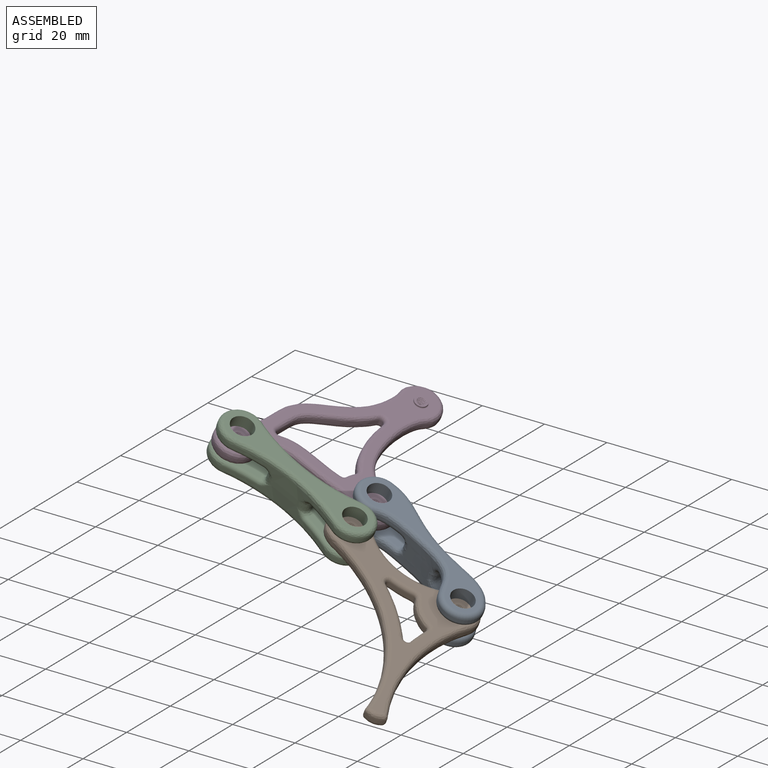
[diagram: assembled view]
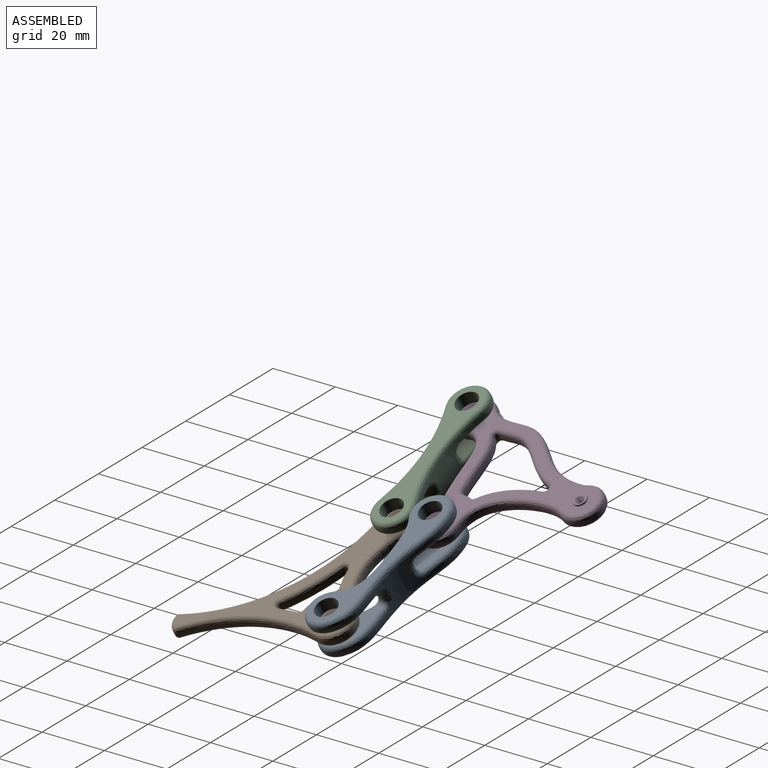
[diagram: assembled view, second angle]
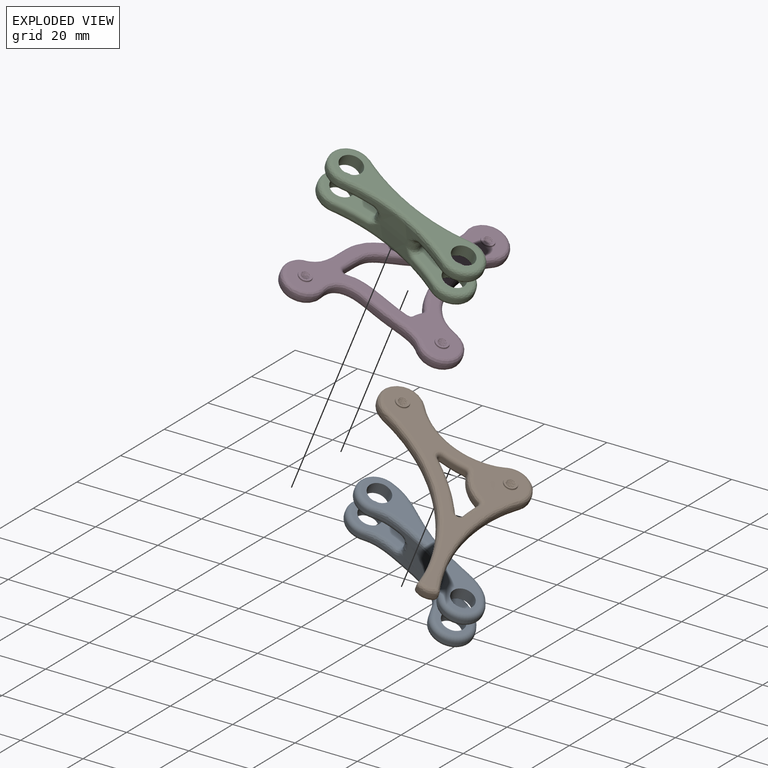
[diagram: exploded view]
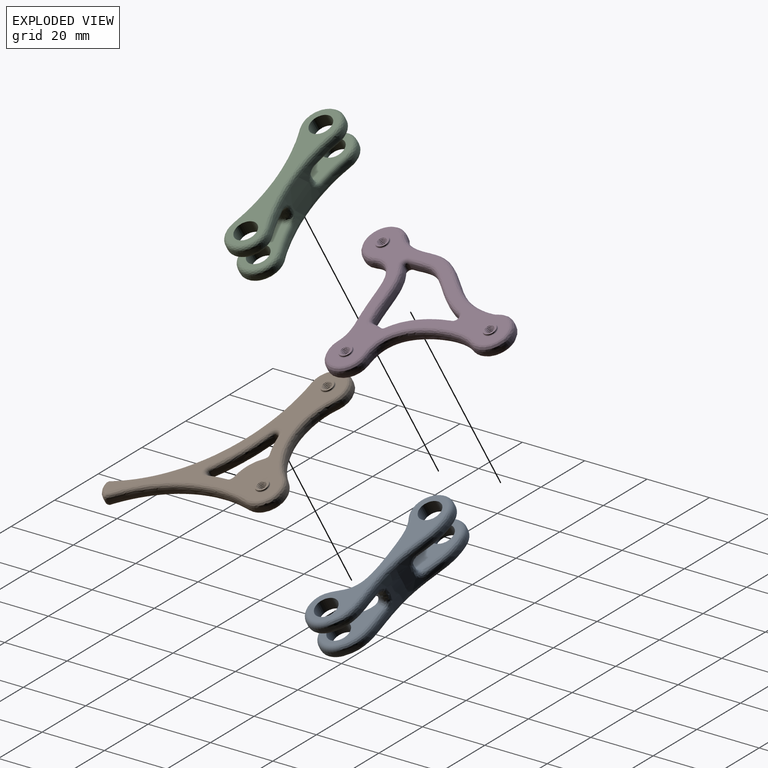
[diagram: exploded view, second angle]
ASSEMBLY  parts=4 mates=4
PART A: 78 faces, bbox 33.5x48.2x13 mm
  f0: bspline ~39.39x24.31mm, area 109.2mm2, adj f1,f3,f5,f6
  f1: torus R=5mm, axis (0,0,1), area 50.4mm2, adj f0,f2,f4,f6
  f2: bspline ~28.23x17.7mm, area 83.1mm2, adj f1,f3,f6,f36
  f3: torus R=5mm, axis (0,0,1), area 43.1mm2, adj f0,f2,f6,f35
  f4: cylinder r=6.5mm len=13mm, axis (0,0,1), area 23.4mm2, adj f1,f5,f16,f36
  f5: extruded ~39.1x23.85mm, area 65.9mm2, adj f0,f4,f9,f11,f12,f17,f19,f21
  f6: plane 44.16x29.44mm, normal (0,0,1), area 202.9mm2, adj f0,f1,f2,f3,f33,f34
  f7: bspline ~10.74x5.14mm, area 25.5mm2, adj f8,f10,f14,f36
  f8: torus R=5mm, axis (0,0,1), area 43.1mm2, adj f7,f9,f14,f35
  f9: bspline ~14.06x10.06mm, area 39.9mm2, adj f5,f8,f11,f14
  f10: bspline ~3.12x2.52mm, area 5mm2, adj f7,f22,f24,f36
  f11: bspline ~2.57x2.4mm, area 5.1mm2, adj f5,f9,f12,f13
  f12: bspline ~2.74x1.5mm, area 1.4mm2, adj f5,f11,f13,f31
  f13: bspline ~2.5x1.85mm, area 2.9mm2, adj f11,f12,f14,f23,f31
  f14: plane 15.16x13.83mm, normal (0,0,-1), area 82.9mm2, adj f7,f8,f9,f13,f22,f23,f33
  f15: bspline ~9.5x2.5mm, area 21.5mm2, adj f16,f18,f30,f36
  f16: torus R=5mm, axis (0,0,1), area 50.4mm2, adj f4,f15,f17,f30
  f17: bspline ~12.55x8.2mm, area 33.1mm2, adj f5,f16,f19,f30
  f18: bspline ~2.64x2.37mm, area 5mm2, adj f15,f26,f28,f36
  f19: bspline ~3.13x2.42mm, area 5.1mm2, adj f5,f17,f20,f21
  f20: bspline ~2.39x2.33mm, area 2.6mm2, adj f19,f21,f27,f29,f30
  f21: bspline ~2.37x1.72mm, area 1.4mm2, adj f5,f19,f20,f29
  f22: bspline ~2.27x2.19mm, area 2mm2, adj f10,f14,f23,f24,f25
  f23: cylinder r=1.5mm len=1.5mm, axis (0.87,-0.49,0), area 0.9mm2, adj f13,f14,f22,f70
  f24: bspline ~2.4x1.5mm, area 1.3mm2, adj f10,f22,f25,f36
  f25: extruded ~2.63x2.5mm, area 4.5mm2, adj f22,f24,f70,f71,f72
  f26: bspline ~2.81x1.91mm, area 3.5mm2, adj f18,f27,f28,f30,f32
  f27: cylinder r=1.5mm len=2.17mm, axis (-0.87,0.49,0), area 3.9mm2, adj f20,f26,f30,f68
  f28: bspline ~2.84x1.5mm, area 1.5mm2, adj f18,f26,f32,f36
  f29: extruded ~2.86x2.5mm, area 4.8mm2, adj f20,f21,f68,f73,f74
  f30: plane 17.59x10.22mm, normal (0,0,-1), area 87.5mm2, adj f15,f16,f17,f20,f26,f27,f34
  f31: extruded ~2.83x2.5mm, area 4.9mm2, adj f12,f13,f63,f70,f74
  f32: extruded ~2.9x2.5mm, area 5.2mm2, adj f26,f28,f68,f69,f72
  f33: cylinder r=3.5mm len=7mm, axis (0,0,1), area 88mm2, adj f6,f14
  f34: cylinder r=3.5mm len=7mm, axis (0,0,1), area 88mm2, adj f6,f30
  f35: cylinder r=6.5mm len=12.54mm, axis (0,0,1), area 20mm2, adj f3,f5,f8,f36
  f36: extruded ~26.45x16mm, area 52mm2, adj f2,f4,f7,f10,f15,f18,f24,f28
  f37: bspline ~39.39x24.31mm, area 109.2mm2, adj f38,f40,f42,f43
  f38: torus R=5mm, axis (0,0,1), area 50.4mm2, adj f37,f39,f43,f77
  f39: bspline ~28.23x17.53mm, area 83.2mm2, adj f38,f40,f43,f49
  f40: torus R=5mm, axis (0,0,1), area 43.1mm2, adj f37,f39,f41,f43
  f41: cylinder r=6.5mm len=12.54mm, axis (0,0,1), area 20mm2, adj f40,f42,f45,f49
  f42: extruded ~39.1x23.85mm, area 65.9mm2, adj f37,f41,f46,f48,f54,f56,f62,f67
  f43: plane 44.16x29.44mm, normal (0,0,-1), area 202.8mm2, adj f37,f38,f39,f40,f75,f76
  f44: bspline ~10.74x5.14mm, area 25.5mm2, adj f45,f47,f49,f64
  f45: torus R=5mm, axis (0,0,1), area 43.1mm2, adj f41,f44,f46,f64
  f46: bspline ~14.06x10.06mm, area 39.9mm2, adj f42,f45,f48,f64
  f47: bspline ~3.12x2.52mm, area 5mm2, adj f44,f49,f50,f51
  f48: bspline ~2.57x2.4mm, area 5.1mm2, adj f42,f46,f61,f62
  f49: extruded ~26.45x16mm, area 52mm2, adj f39,f41,f44,f47,f50,f52,f55,f59
  f50: bspline ~2.4x1.5mm, area 1.3mm2, adj f47,f49,f51,f71
  f51: bspline ~2.27x2.19mm, area 2mm2, adj f47,f50,f60,f64,f71
  f52: bspline ~9.5x2.5mm, area 21.5mm2, adj f49,f53,f55,f57
  f53: torus R=5mm, axis (0,0,1), area 50.4mm2, adj f52,f54,f57,f77
  f54: bspline ~12.55x8.2mm, area 33.1mm2, adj f42,f53,f56,f57
  f55: bspline ~2.64x2.37mm, area 5mm2, adj f49,f52,f58,f59
  f56: bspline ~3.13x2.42mm, area 5.1mm2, adj f42,f54,f66,f67
  f57: plane 17.59x10.22mm, normal (0,0,1), area 87.5mm2, adj f52,f53,f54,f58,f65,f66,f76
  f58: bspline ~2.81x1.85mm, area 3.5mm2, adj f55,f57,f59,f65,f69
  f59: bspline ~2.84x1.5mm, area 1.4mm2, adj f49,f55,f58,f69
  f60: cylinder r=1.5mm len=1.5mm, axis (-0.87,0.49,0), area 0.9mm2, adj f51,f61,f64,f70
  f61: bspline ~2.5x1.88mm, area 2.9mm2, adj f48,f60,f62,f63,f64
  f62: bspline ~2.74x1.5mm, area 1.3mm2, adj f42,f48,f61,f63
  f63: extruded ~2.83x2.5mm, area 4.9mm2, adj f31,f61,f62,f70,f74
  f64: plane 15.16x13.83mm, normal (0,0,1), area 82.9mm2, adj f44,f45,f46,f51,f60,f61,f75
  f65: cylinder r=1.5mm len=2.17mm, axis (0.87,-0.49,0), area 3.9mm2, adj f57,f58,f66,f68
  f66: bspline ~2.39x2.33mm, area 2.6mm2, adj f56,f57,f65,f67,f73
  f67: bspline ~2.37x1.72mm, area 1.4mm2, adj f42,f56,f66,f73
  f68: plane 2x1.43mm, normal (0.49,0.87,0), area 3.3mm2, adj f27,f29,f32,f65,f69,f73
  f69: extruded ~2.9x2.5mm, area 5.2mm2, adj f32,f58,f59,f68,f72
  f70: plane 2x0.34mm, normal (-0.49,-0.87,0), area 0.8mm2, adj f23,f25,f31,f60,f63,f71
  f71: extruded ~2.63x2.5mm, area 4.5mm2, adj f25,f50,f51,f70,f72
  f72: extruded ~8.03x5mm, area 42.8mm2, adj f25,f32,f36,f49,f69,f71
  f73: extruded ~2.86x2.5mm, area 4.8mm2, adj f29,f66,f67,f68,f74
  f74: extruded ~7.36x5mm, area 41.9mm2, adj f5,f29,f31,f42,f63,f73
  f75: cylinder r=3.5mm len=7mm, axis (0,0,1), area 88mm2, adj f43,f64
  f76: cylinder r=3.5mm len=7mm, axis (0,0,1), area 88mm2, adj f43,f57
  f77: cylinder r=6.5mm len=13mm, axis (0,0,1), area 23.4mm2, adj f38,f42,f49,f53
PART B: 70 faces, bbox 71x46.2x5.5 mm
  f0: cylinder r=1.54mm len=5mm, axis (0,0,1), area 8.9mm2, adj f1,f2,f3,f64
  f1: bspline ~5.32x3.65mm, area 28.6mm2, adj f0,f3,f64,f67
  f2: bspline ~5.32x3.08mm, area 28.5mm2, adj f0,f3,f64,f67
  f3: plane 4.14x4.14mm, normal (0,0,-1), area 6.2mm2, adj f0,f1,f2,f15,f67
  f4: cylinder r=1.54mm len=5mm, axis (0,0,1), area 8.9mm2, adj f5,f6,f7,f65
  f5: bspline ~5.32x3.65mm, area 28.6mm2, adj f4,f7,f65,f66
  f6: bspline ~5.32x3.08mm, area 28.5mm2, adj f4,f7,f65,f66
  f7: plane 4.14x4.14mm, normal (0,0,-1), area 6.2mm2, adj f4,f5,f6,f17,f66
  f8: bspline ~4.6x4.6mm, area 6.4mm2, adj f9,f10
  f9: plane 67.62x42.48mm, normal (0,0,1), area 469.8mm2, adj f8,f11,f18,f19,f20,f21,f22,f23
  f10: cylinder r=2mm len=4mm, axis (0,0,1), area 2.5mm2, adj f8,f64
  f11: bspline ~4.6x4.6mm, area 6.4mm2, adj f9,f12
  f12: cylinder r=2mm len=4mm, axis (0,0,1), area 2.5mm2, adj f11,f65
  f13: bspline ~4.6x4.6mm, area 6.4mm2, adj f14,f15
  f14: plane 67.62x42.48mm, normal (0,0,-1), area 469.8mm2, adj f13,f16,f30,f31,f32,f33,f34,f35
  f15: cylinder r=2mm len=4mm, axis (0,0,1), area 2.5mm2, adj f3,f13
  f16: bspline ~4.6x4.6mm, area 6.4mm2, adj f14,f17
  f17: cylinder r=2mm len=4mm, axis (0,0,1), area 2.5mm2, adj f7,f16
  f18: bspline ~3.12x2.1mm, area 5.5mm2, adj f9,f19,f25,f29
  f19: bspline ~9.74x3.22mm, area 23.5mm2, adj f9,f18,f20,f38
  f20: bspline ~3.13x2.01mm, area 5mm2, adj f9,f19,f21,f60
  f21: bspline ~6.04x5.36mm, area 16.3mm2, adj f9,f20,f22,f61
  f22: bspline ~4.65x2.74mm, area 9.7mm2, adj f9,f21,f23,f59
  f23: bspline ~18.78x4.23mm, area 45.9mm2, adj f9,f22,f24,f26
  f24: bspline ~3.76x3.26mm, area 8.9mm2, adj f9,f23,f25,f27
  f25: bspline ~6.54x4.31mm, area 16.1mm2, adj f9,f18,f24,f28
  f26: cylinder r=55mm len=18.78mm, axis (0,0,-1), area 19mm2, adj f23,f27,f31,f59
  f27: cylinder r=1mm len=1.51mm, axis (0,0,-1), area 2.4mm2, adj f24,f26,f28,f30
  f28: cylinder r=55mm len=5.95mm, axis (0,0,-1), area 6.7mm2, adj f25,f27,f29,f37
  f29: cylinder r=1mm len=1.25mm, axis (0,0,-1), area 1.5mm2, adj f18,f28,f36,f38
  f30: bspline ~3.76x3.26mm, area 8.9mm2, adj f14,f27,f31,f37
  f31: bspline ~18.78x4.23mm, area 45.9mm2, adj f14,f26,f30,f32
  f32: bspline ~4.65x2.74mm, area 9.7mm2, adj f14,f31,f33,f59
  f33: bspline ~6.04x5.36mm, area 16.3mm2, adj f14,f32,f34,f61
  f34: bspline ~3.13x1.98mm, area 5mm2, adj f14,f33,f35,f60
  f35: bspline ~9.74x3.22mm, area 23.5mm2, adj f14,f34,f36,f38
  f36: bspline ~3.12x2.1mm, area 5.5mm2, adj f14,f29,f35,f37
  f37: bspline ~6.54x4.31mm, area 16.1mm2, adj f14,f28,f30,f36
  f38: cylinder r=11.5mm len=9.74mm, axis (0,0,-1), area 10.1mm2, adj f19,f29,f35,f60
  f39: bspline ~1.6x1.5mm, area 1.2mm2, adj f44,f46,f63
  f40: bspline ~1.55x1.5mm, area 1.2mm2, adj f43,f46,f47
  f41: bspline ~25.48x16.49mm, area 76.3mm2, adj f14,f42,f45,f50
  f42: bspline ~12.67x5.95mm, area 39.1mm2, adj f14,f41,f43,f49
  f43: bspline ~36.28x27.3mm, area 109.9mm2, adj f14,f40,f42,f48
  f44: bspline ~58.83x20.1mm, area 153.7mm2, adj f14,f39,f45,f68
  f45: bspline ~13.35x9.19mm, area 54.6mm2, adj f14,f41,f44,f69
  f46: bspline ~4.43x3.92mm, area 11.9mm2, adj f14,f39,f40,f62
  f47: cylinder r=1mm len=1mm, axis (0,0,1), area 1.2mm2, adj f40,f48,f52,f62
  f48: cylinder r=50mm len=34.95mm, axis (0,0,1), area 44.9mm2, adj f43,f47,f49,f54
  f49: cylinder r=6.5mm len=12.67mm, axis (0,0,1), area 17.5mm2, adj f42,f48,f50,f55
  f50: cylinder r=20mm len=23.7mm, axis (0,0,1), area 30.6mm2, adj f41,f49,f56,f69
  f51: bspline ~1.6x1.5mm, area 1.2mm2, adj f53,f58,f63
  f52: bspline ~1.55x1.5mm, area 1.2mm2, adj f47,f53,f54
  f53: bspline ~4.43x3.92mm, area 11.9mm2, adj f9,f51,f52,f62
  f54: bspline ~36.28x27.3mm, area 109.9mm2, adj f9,f48,f52,f55
  f55: bspline ~12.67x6.06mm, area 39.2mm2, adj f9,f49,f54,f56
  f56: bspline ~25.48x16.49mm, area 76.3mm2, adj f9,f50,f55,f57
  f57: bspline ~13.35x9.19mm, area 54.6mm2, adj f9,f56,f58,f69
  f58: bspline ~58.83x19.43mm, area 153.7mm2, adj f9,f51,f57,f68
  f59: cylinder r=1mm len=1.85mm, axis (0,0,-1), area 2.6mm2, adj f22,f26,f32,f61
  f60: cylinder r=1mm len=1.25mm, axis (0,0,-1), area 1.4mm2, adj f20,f34,f38,f61
  f61: cylinder r=25mm len=5.25mm, axis (0,0,-1), area 6.8mm2, adj f21,f33,f59,f60
  f62: cylinder r=4.88mm len=4.31mm, axis (0,0,1), area 5.9mm2, adj f46,f47,f53,f63
  f63: cylinder r=1mm len=1.04mm, axis (0,0,-1), area 1.1mm2, adj f39,f51,f62,f68
  f64: plane 4.14x4.14mm, normal (0,0,1), area 6.2mm2, adj f0,f1,f2,f10,f67
  f65: plane 4.14x4.14mm, normal (0,0,1), area 6.2mm2, adj f4,f5,f6,f12,f66
  f66: cylinder r=1.26mm len=5mm, axis (0,0,1), area 6.2mm2, adj f5,f6,f7,f65
  f67: cylinder r=1.26mm len=5mm, axis (0,0,1), area 6.2mm2, adj f1,f2,f3,f64
  f68: cylinder r=50mm len=57.12mm, axis (0,0,1), area 62.8mm2, adj f44,f58,f63,f69
  f69: cylinder r=6.5mm len=13mm, axis (0,0,1), area 24.4mm2, adj f45,f50,f57,f68
PART C: 66 faces, bbox 27.5x50x13 mm
  f0: bspline ~4.06x3mm, area 4.1mm2, adj f1,f18,f36
  f1: bspline ~9.61x2.51mm, area 23mm2, adj f0,f2,f21,f36
  f2: bspline ~13x10.82mm, area 56.1mm2, adj f1,f3,f5,f21
  f3: bspline ~8.54x6.82mm, area 23mm2, adj f2,f4,f21,f38
  f4: bspline ~4.45x3mm, area 3.9mm2, adj f3,f20,f38
  f5: cylinder r=6.5mm len=13mm, axis (0,0,1), area 25.1mm2, adj f2,f16,f36,f38
  f6: bspline ~4.06x3mm, area 4.2mm2, adj f7,f12,f38
  f7: bspline ~9.61x2.51mm, area 23mm2, adj f6,f8,f24,f38
  f8: bspline ~13.23x11.12mm, area 56.1mm2, adj f7,f9,f11,f24
  f9: bspline ~8.54x6.82mm, area 23mm2, adj f8,f10,f24,f36
  f10: bspline ~4.45x3mm, area 4.2mm2, adj f9,f23,f36
  f11: cylinder r=6.5mm len=13mm, axis (0,0,1), area 25.1mm2, adj f8,f14,f36,f38
  f12: bspline ~5.95x3.76mm, area 8.8mm2, adj f6,f22,f24,f25
  f13: bspline ~33.5x14.12mm, area 87.4mm2, adj f14,f16,f17,f36
  f14: bspline ~13.23x11.12mm, area 56.1mm2, adj f11,f13,f15,f17
  f15: bspline ~33.5x14.12mm, area 87.4mm2, adj f14,f16,f17,f38
  f16: bspline ~13x10.82mm, area 56.1mm2, adj f5,f13,f15,f17
  f17: plane 46.74x24.27mm, normal (0,0,1), area 216.6mm2, adj f13,f14,f15,f16,f29,f30
  f18: bspline ~5.95x3.76mm, area 8.8mm2, adj f0,f19,f21,f27
  f19: extruded ~1.5x1.5mm, area 0.7mm2, adj f18,f20,f21,f62
  f20: bspline ~6.17x3.65mm, area 8.8mm2, adj f4,f19,f21,f28
  f21: plane 16.1x11.04mm, normal (0,0,-1), area 77.8mm2, adj f1,f2,f3,f18,f19,f20,f30
  f22: extruded ~1.5x1.5mm, area 0.7mm2, adj f12,f23,f24,f59
  f23: bspline ~6.17x3.65mm, area 8.8mm2, adj f10,f22,f24,f26
  f24: plane 16.1x11.04mm, normal (0,0,-1), area 77.8mm2, adj f7,f8,f9,f12,f22,f23,f29
  f25: extruded ~3.96x2.26mm, area 5.1mm2, adj f12,f38,f58,f59
  f26: extruded ~4.12x2.04mm, area 5.1mm2, adj f23,f36,f59,f60
  f27: extruded ~3.96x2.26mm, area 5.1mm2, adj f18,f36,f61,f62
  f28: extruded ~4.12x2.04mm, area 5.1mm2, adj f20,f38,f62,f63
  f29: cylinder r=3.5mm len=7mm, axis (0,0,1), area 88mm2, adj f17,f24
  f30: cylinder r=3.5mm len=7mm, axis (0,0,1), area 88mm2, adj f17,f21
  f31: bspline ~4.45x3mm, area 3.8mm2, adj f32,f38,f50
  f32: bspline ~8.54x6.82mm, area 23mm2, adj f31,f33,f38,f53
  f33: bspline ~13x10.82mm, area 56.1mm2, adj f32,f34,f37,f53
  f34: bspline ~9.61x2.51mm, area 23mm2, adj f33,f35,f36,f53
  f35: bspline ~4.06x3mm, area 3.8mm2, adj f34,f36,f52
  f36: cylinder r=50mm len=32.5mm, axis (0,0,1), area 156.1mm2, adj f0,f1,f5,f9,f10,f11,f13,f26
  f37: cylinder r=6.5mm len=13mm, axis (0,0,1), area 25.1mm2, adj f33,f36,f38,f48
  f38: cylinder r=50mm len=32.5mm, axis (0,0,1), area 156.1mm2, adj f3,f4,f5,f6,f7,f11,f15,f25
  f39: bspline ~4.45x3mm, area 4.1mm2, adj f36,f40,f54
  f40: bspline ~8.54x6.82mm, area 23mm2, adj f36,f39,f41,f57
  f41: bspline ~13.23x11.12mm, area 56.1mm2, adj f40,f42,f44,f57
  f42: bspline ~9.61x2.51mm, area 23mm2, adj f38,f41,f43,f57
  f43: bspline ~4.06x3mm, area 3.9mm2, adj f38,f42,f56
  f44: cylinder r=6.5mm len=13mm, axis (0,0,1), area 25.1mm2, adj f36,f38,f41,f46
  f45: bspline ~33.5x14.12mm, area 87.4mm2, adj f36,f46,f48,f49
  f46: bspline ~13.23x11.12mm, area 56.1mm2, adj f44,f45,f47,f49
  f47: bspline ~33.5x14.12mm, area 87.4mm2, adj f38,f46,f48,f49
  f48: bspline ~13x10.82mm, area 56.1mm2, adj f37,f45,f47,f49
  f49: plane 46.74x24.27mm, normal (0,0,-1), area 216.6mm2, adj f45,f46,f47,f48,f64,f65
  f50: bspline ~6.17x3.6mm, area 8.8mm2, adj f31,f51,f53,f63
  f51: extruded ~1.5x1.5mm, area 0.7mm2, adj f50,f52,f53,f62
  f52: bspline ~5.95x3.76mm, area 8.8mm2, adj f35,f51,f53,f61
  f53: plane 16.1x11.04mm, normal (0,0,1), area 77.8mm2, adj f32,f33,f34,f50,f51,f52,f65
  f54: bspline ~6.17x3.54mm, area 8.8mm2, adj f39,f55,f57,f60
  f55: extruded ~1.5x1.5mm, area 0.7mm2, adj f54,f56,f57,f59
  f56: bspline ~5.95x3.83mm, area 8.8mm2, adj f43,f55,f57,f58
  f57: plane 16.1x11.04mm, normal (0,0,1), area 77.8mm2, adj f40,f41,f42,f54,f55,f56,f64
  f58: extruded ~3.96x2.26mm, area 5.1mm2, adj f25,f38,f56,f59
  f59: plane 2x0.27mm, normal (0.36,0.93,0), area 0.6mm2, adj f22,f25,f26,f55,f58,f60
  f60: extruded ~4.12x2.04mm, area 5.1mm2, adj f26,f36,f54,f59
  f61: extruded ~3.96x2.26mm, area 5.1mm2, adj f27,f36,f52,f62
  f62: plane 2x0.27mm, normal (-0.36,-0.93,0), area 0.6mm2, adj f19,f27,f28,f51,f61,f63
  f63: extruded ~4.12x2.04mm, area 5.1mm2, adj f28,f38,f50,f62
  f64: cylinder r=3.5mm len=7mm, axis (0,0,1), area 88mm2, adj f49,f57
  f65: cylinder r=3.5mm len=7mm, axis (0,0,1), area 88mm2, adj f49,f53
PART D: 74 faces, bbox 50.3x66.7x5.5 mm
  f0: cylinder r=1.54mm len=5mm, axis (0,0,1), area 8.9mm2, adj f1,f2,f3,f68
  f1: bspline ~5.32x3.65mm, area 28.6mm2, adj f0,f3,f68,f71
  f2: bspline ~5.32x3.08mm, area 28.5mm2, adj f0,f3,f68,f71
  f3: plane 4.14x4.14mm, normal (0,0,-1), area 6.2mm2, adj f0,f1,f2,f59,f71
  f4: cylinder r=1.54mm len=5mm, axis (0,0,1), area 8.9mm2, adj f5,f6,f7,f69
  f5: bspline ~5.32x3.65mm, area 28.6mm2, adj f4,f7,f69,f72
  f6: bspline ~5.32x3.08mm, area 28.5mm2, adj f4,f7,f69,f72
  f7: plane 4.14x4.14mm, normal (0,0,-1), area 6.2mm2, adj f4,f5,f6,f61,f72
  f8: cylinder r=1.54mm len=5mm, axis (0,0,1), area 8.9mm2, adj f9,f10,f11,f70
  f9: bspline ~5.32x3.65mm, area 28.6mm2, adj f8,f11,f70,f73
  f10: bspline ~5.32x3.08mm, area 28.5mm2, adj f8,f11,f70,f73
  f11: plane 4.14x4.14mm, normal (0,0,-1), area 6.2mm2, adj f8,f9,f10,f57,f73
  f12: bspline ~48.02x17.79mm, area 124.8mm2, adj f13,f17,f20,f21
  f13: bspline ~13.57x9.37mm, area 57.9mm2, adj f12,f14,f19,f21
  f14: bspline ~29.62x16.15mm, area 88.7mm2, adj f13,f15,f18,f21
  f15: bspline ~13.33x9.62mm, area 53mm2, adj f14,f16,f21,f28
  f16: bspline ~29.77x12.19mm, area 82.6mm2, adj f15,f17,f21,f29
  f17: bspline ~13.43x11.17mm, area 58.8mm2, adj f12,f16,f21,f30
  f18: extruded ~27.46x14.44mm, area 35.5mm2, adj f14,f19,f25,f28
  f19: cylinder r=6.5mm len=13mm, axis (0,0,1), area 25.9mm2, adj f13,f18,f20,f26
  f20: extruded ~46.25x16.29mm, area 50.8mm2, adj f12,f19,f27,f30
  f21: plane 63.11x46.6mm, normal (0,0,-1), area 491.9mm2, adj f12,f13,f14,f15,f16,f17,f32,f33
  f22: bspline ~13.43x11.16mm, area 58.8mm2, adj f23,f27,f30,f31
  f23: bspline ~29.77x12.19mm, area 82.6mm2, adj f22,f24,f29,f31
  f24: bspline ~13.33x9.62mm, area 53mm2, adj f23,f25,f28,f31
  f25: bspline ~29.62x16.15mm, area 88.7mm2, adj f18,f24,f26,f31
  f26: bspline ~13.57x9.37mm, area 57.9mm2, adj f19,f25,f27,f31
  f27: bspline ~48.02x17.81mm, area 124.8mm2, adj f20,f22,f26,f31
  f28: cylinder r=6.5mm len=13mm, axis (0,0,1), area 23.7mm2, adj f15,f18,f24,f29
  f29: extruded ~27.52x10.25mm, area 32.9mm2, adj f16,f23,f28,f30
  f30: cylinder r=6.5mm len=13mm, axis (0,0,1), area 26.4mm2, adj f17,f20,f22,f29
  f31: plane 63.11x46.6mm, normal (0,0,1), area 491.8mm2, adj f22,f23,f24,f25,f26,f27,f44,f45
  f32: bspline ~4.12x2.84mm, area 8.4mm2, adj f21,f33,f39,f43
  f33: bspline ~19.44x5.8mm, area 47.8mm2, adj f21,f32,f34,f42
  f34: bspline ~2.45x2.33mm, area 5mm2, adj f21,f33,f35,f41
  f35: bspline ~3.32x2mm, area 7.7mm2, adj f21,f34,f36,f40
  f36: bspline ~2.77x1.96mm, area 4.5mm2, adj f21,f35,f37,f52
  f37: bspline ~18.21x9.2mm, area 48.4mm2, adj f21,f36,f38,f53
  f38: bspline ~4.86x2.49mm, area 10mm2, adj f21,f37,f39,f54
  f39: bspline ~27.82x13.26mm, area 75mm2, adj f21,f32,f38,f55
  f40: cylinder r=11.5mm len=3.27mm, axis (0,0,1), area 3.3mm2, adj f35,f41,f46,f52
  f41: cylinder r=1mm len=1mm, axis (0,0,1), area 1.3mm2, adj f34,f40,f42,f47
  f42: extruded ~19.15x4.63mm, area 19.9mm2, adj f33,f41,f43,f48
  f43: cylinder r=1mm len=1.63mm, axis (0,0,-1), area 2.3mm2, adj f32,f42,f49,f55
  f44: bspline ~18.21x9.2mm, area 48.4mm2, adj f31,f45,f51,f53
  f45: bspline ~2.77x1.97mm, area 4.5mm2, adj f31,f44,f46,f52
  f46: bspline ~3.32x2mm, area 7.7mm2, adj f31,f40,f45,f47
  f47: bspline ~2.45x2.33mm, area 5mm2, adj f31,f41,f46,f48
  f48: bspline ~19.44x5.8mm, area 47.8mm2, adj f31,f42,f47,f49
  f49: bspline ~4.12x2.84mm, area 8.4mm2, adj f31,f43,f48,f50
  f50: bspline ~27.82x13.26mm, area 75mm2, adj f31,f49,f51,f55
  f51: bspline ~4.91x2.52mm, area 10mm2, adj f31,f44,f50,f54
  f52: cylinder r=1mm len=1.1mm, axis (0,0,1), area 1.2mm2, adj f36,f40,f45,f53
  f53: extruded ~18.03x8.27mm, area 20.3mm2, adj f37,f44,f52,f54
  f54: cylinder r=1mm len=1.95mm, axis (0,0,-1), area 2.7mm2, adj f38,f51,f53,f55
  f55: extruded ~27.36x11.72mm, area 30.7mm2, adj f39,f43,f50,f54
  f56: bspline ~4.6x4.6mm, area 6.5mm2, adj f21,f57
  f57: cylinder r=2mm len=4mm, axis (0,0,1), area 2.5mm2, adj f11,f56
  f58: bspline ~4.6x4.6mm, area 6.4mm2, adj f21,f59
  f59: cylinder r=2mm len=4mm, axis (0,0,1), area 2.5mm2, adj f3,f58
  f60: bspline ~4.6x4.6mm, area 6.5mm2, adj f21,f61
  f61: cylinder r=2mm len=4mm, axis (0,0,1), area 2.5mm2, adj f7,f60
  f62: bspline ~4.6x4.6mm, area 6.5mm2, adj f31,f63
  f63: cylinder r=2mm len=4mm, axis (0,0,1), area 2.5mm2, adj f62,f70
  f64: bspline ~4.6x4.6mm, area 6.5mm2, adj f31,f65
  f65: cylinder r=2mm len=4mm, axis (0,0,1), area 2.5mm2, adj f64,f69
  f66: bspline ~4.6x4.6mm, area 6.4mm2, adj f31,f67
  f67: cylinder r=2mm len=4mm, axis (0,0,1), area 2.5mm2, adj f66,f68
  f68: plane 4.14x4.14mm, normal (0,0,1), area 6.2mm2, adj f0,f1,f2,f67,f71
  f69: plane 4.14x4.14mm, normal (0,0,1), area 6.2mm2, adj f4,f5,f6,f65,f72
  f70: plane 4.14x4.14mm, normal (0,0,1), area 6.2mm2, adj f8,f9,f10,f63,f73
  f71: cylinder r=1.26mm len=5mm, axis (0,0,1), area 6.2mm2, adj f1,f2,f3,f68
  f72: cylinder r=1.26mm len=5mm, axis (0,0,1), area 6.2mm2, adj f5,f6,f7,f69
  f73: cylinder r=1.26mm len=5mm, axis (0,0,1), area 6.2mm2, adj f9,f10,f11,f70
PLACE A rot(axis=(0.28,0.1,0.96),105.7deg) t=(124.79,85.14,-62.38)mm
PLACE B rot(axis=(0.04,0.68,-0.73),39.9deg) t=(26.85,35.77,-22.86)mm
PLACE C rot(axis=(0.27,0.08,0.96),112.6deg) t=(66.33,112.43,-29.68)mm
PLACE D rot(axis=(0.24,0.93,-0.26),28deg) t=(-10.77,1.59,-10.13)mm fixed
MATE revolute C.f5 <-> B.f4  axis (-0.43,0.14,-0.89) through (35.42,80.67,-16.99)mm
MATE revolute A.f1 <-> D.f4  axis (-0.43,0.14,-0.89) through (34.9,92.64,-14.82)mm
MATE revolute D.f0 <-> C.f11  axis (0.43,-0.14,0.89) through (-0.08,79.91,0.08)mm
MATE cylindrical A.f3 <-> B.f0  axis (-0.43,0.14,-0.89) through (68.53,82.89,-32.68)mm
